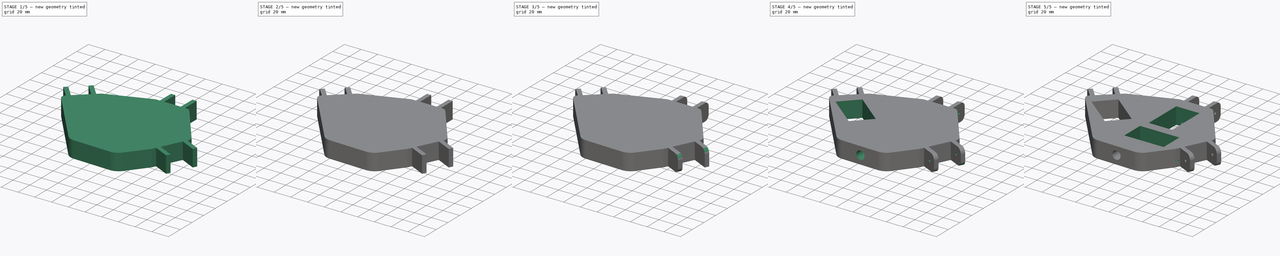
[diagram: build sequence overview — one tinted view per stage of 5, left to right]
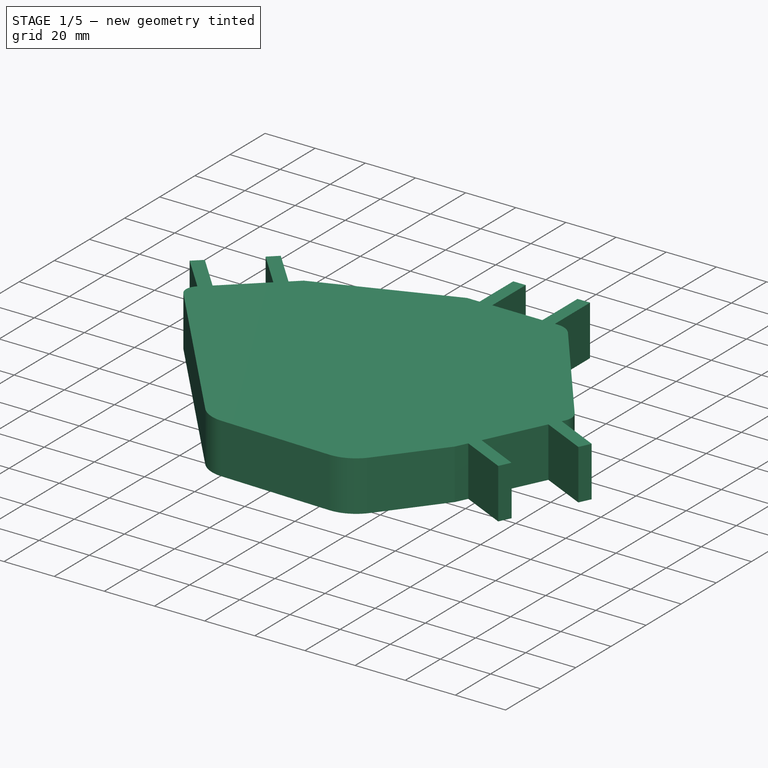
[diagram: stage 1 of 5 — iso view after this stage's code; geometry added in this stage tinted green]
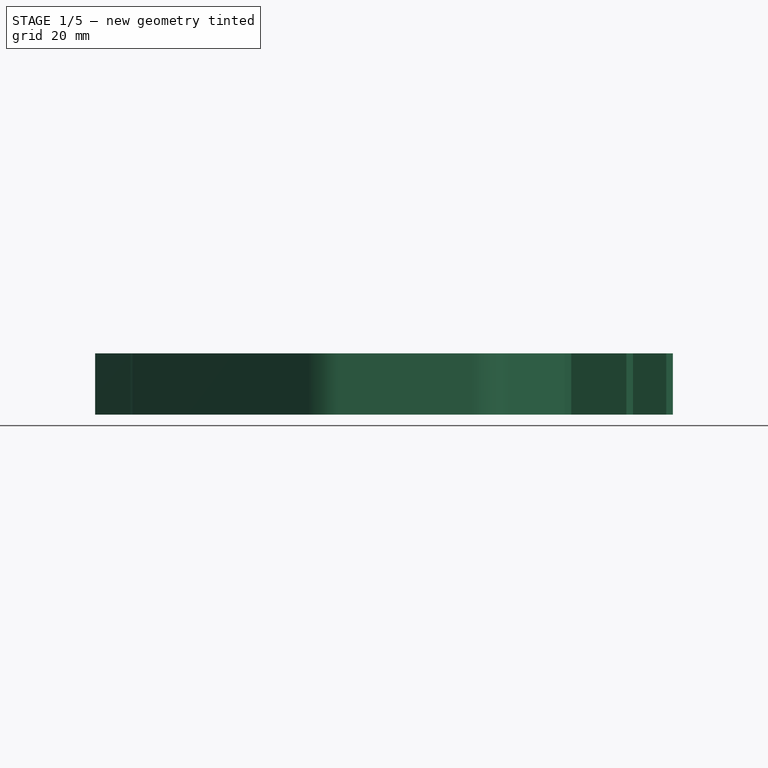
[diagram: stage 1 of 5 — front view after this stage's code; geometry added in this stage tinted green]
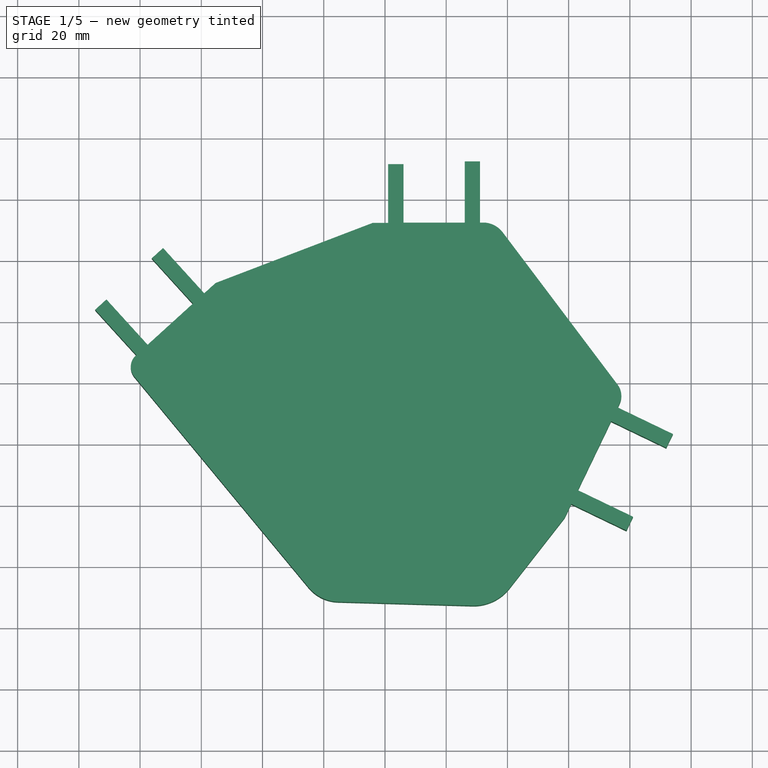
[diagram: stage 1 of 5 — top view after this stage's code; geometry added in this stage tinted green]
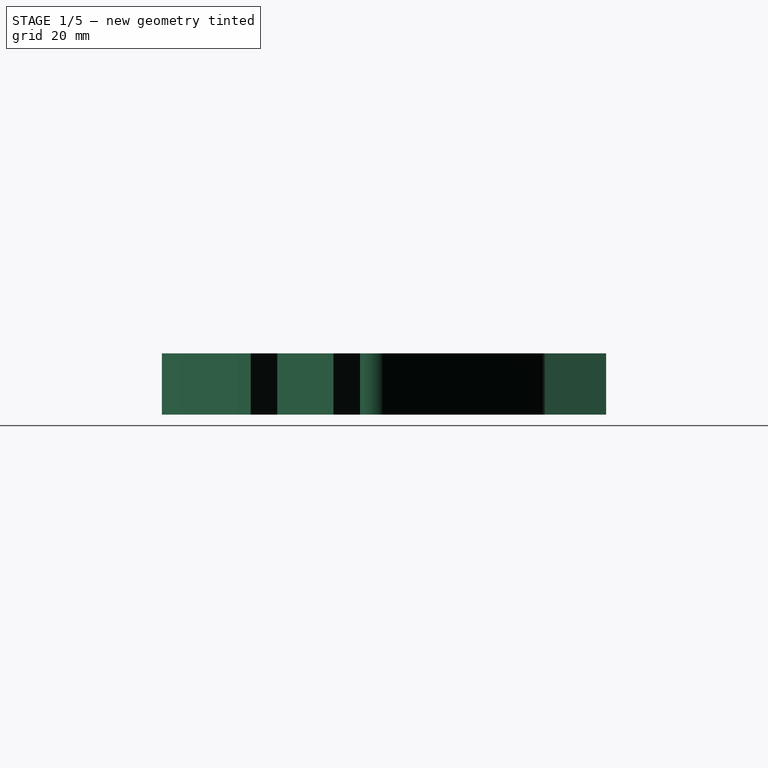
[diagram: stage 1 of 5 — right view after this stage's code; geometry added in this stage tinted green]
FCSTD DOCUMENT  (FreeCAD 0.20R29601 (Git))
Label: palm_updated
License: All rights reserved
LicenseURL: http://en.wikipedia.org/wiki/All_rights_reserved
objects: PartDesign::Fillet×19, PartDesign::Pocket×11, Sketcher::SketchObject×9, PartDesign::Pad×1, PartDesign::Body×1
note: 72 computed .brp shape members not serialized (recipe doc carries the construction recipe); baked Part::Feature solids carry a one-line shape summary decoded from their .brp

FEATURE [Sketcher::SketchObject] Sketch
  FullyConstrained = false
  MapMode = 5
  Support = -> [XY_Plane]
  sketch-geometry (32):
    g0: LineSegment StartX=-64.9413 StartY=5.66135 StartZ=0 EndX=-61.2408 EndY=9.02385 EndZ=0
    g1: LineSegment StartX=-61.2408 StartY=9.02385 StartZ=0 EndX=-74.6908 EndY=23.8258 EndZ=0
    g2: LineSegment StartX=-74.6908 StartY=23.8258 StartZ=0 EndX=-70.9904 EndY=27.1883 EndZ=0
    g3: LineSegment StartX=-70.9904 StartY=27.1883 StartZ=0 EndX=-57.5403 EndY=12.3864 EndZ=0
    g4: LineSegment StartX=-57.5403 StartY=12.3864 StartZ=0 EndX=-42.7384 EndY=25.8364 EndZ=0
    g5: LineSegment StartX=-42.7384 StartY=25.8364 StartZ=0 EndX=-56.1884 EndY=40.6383 EndZ=0
    g6: LineSegment StartX=-56.1884 StartY=40.6383 StartZ=0 EndX=-52.4879 EndY=44.0008 EndZ=0
    g7: LineSegment StartX=-52.4879 StartY=44.0008 StartZ=0 EndX=-39.0379 EndY=29.1989 EndZ=0
    g8: LineSegment StartX=-39.0379 StartY=29.1989 StartZ=0 EndX=-35.3374 EndY=32.5614 EndZ=0
    g9: LineSegment StartX=-35.3374 StartY=32.5614 StartZ=0 EndX=16.0302 EndY=52.2176 EndZ=0
    g10: LineSegment StartX=16.0302 StartY=52.2176 StartZ=0 EndX=21.0379 EndY=52.2176 EndZ=0
    g11: LineSegment StartX=21.0379 StartY=52.2176 StartZ=0 EndX=21.0379 EndY=71.3857 EndZ=0
    g12: LineSegment StartX=21.0379 StartY=71.3857 StartZ=0 EndX=26.0379 EndY=71.3857 EndZ=0
    g13: LineSegment StartX=26.0379 StartY=52.3042 StartZ=0 EndX=46.0379 EndY=52.3042 EndZ=0
    g14: LineSegment StartX=46.0379 StartY=52.3042 StartZ=0 EndX=46.0379 EndY=72.3042 EndZ=0
    g15: LineSegment StartX=46.0379 StartY=72.3042 StartZ=0 EndX=51.0379 EndY=72.3042 EndZ=0
    g16: LineSegment StartX=51.0379 StartY=72.3042 StartZ=0 EndX=51.0379 EndY=52.3042 EndZ=0
    g17: LineSegment StartX=51.0379 StartY=52.3042 StartZ=0 EndX=56.0537 EndY=52.3042 EndZ=0
    g18: LineSegment StartX=56.0537 StartY=52.3042 StartZ=0 EndX=98.1987 EndY=-3.58683 EndZ=0
    g19: LineSegment StartX=98.1987 StartY=-3.58683 StartZ=0 EndX=96.0294 EndY=-8.09172 EndZ=0
    g20: LineSegment StartX=96.0294 StartY=-8.09172 StartZ=0 EndX=114.049 EndY=-16.7691 EndZ=0
    g21: LineSegment StartX=114.049 StartY=-16.7691 StartZ=0 EndX=111.88 EndY=-21.2739 EndZ=0
    g22: LineSegment StartX=111.88 StartY=-21.2739 StartZ=0 EndX=93.86 EndY=-12.5966 EndZ=0
    g23: LineSegment StartX=93.86 StartY=-12.5966 StartZ=0 EndX=83.0133 EndY=-35.121 EndZ=0
    g24: LineSegment StartX=83.0133 StartY=-35.121 StartZ=0 EndX=101.033 EndY=-43.7984 EndZ=0
    g25: LineSegment StartX=101.033 StartY=-43.7984 StartZ=0 EndX=98.8635 EndY=-48.3032 EndZ=0
    g26: LineSegment StartX=98.8635 StartY=-48.3032 StartZ=0 EndX=80.844 EndY=-39.6259 EndZ=0
    g27: LineSegment StartX=80.844 StartY=-39.6259 StartZ=0 EndX=78.6747 EndY=-44.1308 EndZ=0
    g28: LineSegment StartX=78.6747 StartY=-44.1308 StartZ=0 EndX=56.0759 EndY=-73.048 EndZ=0
    g29: LineSegment StartX=56.0759 StartY=-73.048 StartZ=0 EndX=-1.22641 EndY=-71.4127 EndZ=0
    g30: LineSegment StartX=-64.9413 StartY=5.66135 StartZ=0 EndX=-1.22641 EndY=-71.4127 EndZ=0
    g31: LineSegment StartX=26.0379 StartY=71.3857 StartZ=0 EndX=26.0379 EndY=52.3042 EndZ=0
  constraints (63):
    c: Coincident(g0,g1)
    c: Coincident(g1,g2)
    c: Coincident(g2,g3)
    c: Coincident(g3,g4)
    c: Coincident(g4,g5)
    c: Coincident(g5,g6)
    c: Coincident(g6,g7)
    c: Coincident(g7,g8)
    c: Coincident(g8,g9)
    c: Coincident(g9,g10)
    c: Coincident(g10,g11)
    c: Vertical(g11)
    c: Coincident(g11,g12)
    c: Horizontal(g13)
    c: Coincident(g13,g14)
    c: Vertical(g14)
    c: Coincident(g14,g15)
    c: Horizontal(g15)
    c: Coincident(g15,g16)
    c: Vertical(g16)
    c: Coincident(g16,g17)
    c: Coincident(g17,g18)
    c: Coincident(g18,g19)
    c: Coincident(g19,g20)
    c: Coincident(g20,g21)
    c: Coincident(g21,g22)
    c: Coincident(g22,g23)
    c: Coincident(g23,g24)
    c: Coincident(g24,g25)
    c: Coincident(g25,g26)
    c: Coincident(g26,g27)
    c: Coincident(g27,g28)
    c: Coincident(g28,g29)
    c: Coincident(g30,g0)
    c: Coincident(g30,g29)
    c: Distance(g18) = 70
    c: Distance(g9) = 55
    c: Distance(g30) = 100
    c: Parallel(g0,g4)
    c: Parallel(g2,g4)
    c: Parallel(g6,g4)
    c: Parallel(g8,g6)
    c: Parallel(g1,g3)
    c: Parallel(g5,g7)
    c: Angle(g4,g3) = 1.5708
    c: Angle(g8,g7) = 1.5708
    c: Angle(g11,g10) = 1.5708
    c: Angle(g11,g12) = 1.5708
    c: Angle(g17,g16) = 1.5708
    c: Angle(g19,g23) = 3.14159
    c: Angle(g20,g19) = 1.5708
    c: Angle(g23,g22) = 1.5708
    c: Angle(g21,g23) = 0
    c: Angle(g27,g23) = 0
    c: Angle(g24,g25) = 1.5708
    c: Parallel(g24,g26)
    c: Parallel(g23,g25)
    c: Coincident(g31,g12)
    c: Coincident(g31,g13)
    c: Vertical(g31)
    c: Distance(g15) = 5
    c: Distance(g12) = 5
    c: Distance(g13) = 20
FEATURE [PartDesign::Pad] Pad
  Direction = (0,0,1)
  Length = 20
  Length2 = 10
  Profile = -> Sketch
  ReferenceAxis = -> Sketch [N_Axis]
  Type = 0
FEATURE [PartDesign::Fillet] Fillet
  Base = -> Pad [Edge89]
  BaseFeature = -> Pad
  Radius = 15
  SupportTransform = false
  UseAllEdges = false
FEATURE [PartDesign::Fillet] Fillet001
  Base = -> Fillet [Edge71]
  BaseFeature = -> Fillet
  Radius = 13
  SupportTransform = false
  UseAllEdges = false
FEATURE [PartDesign::Fillet] Fillet002
  Base = -> Fillet001 [Edge80]
  BaseFeature = -> Fillet001
  Radius = 6
  SupportTransform = false
  UseAllEdges = false
FEATURE [PartDesign::Fillet] Fillet003
  Base = -> Fillet002 [Edge43]
  BaseFeature = -> Fillet002
  Radius = 8
  SupportTransform = false
  UseAllEdges = false
FEATURE [PartDesign::Fillet] Fillet004
  Base = -> Fillet003 [Edge98]
  BaseFeature = -> Fillet003
  Radius = 5
  SupportTransform = false
  UseAllEdges = false
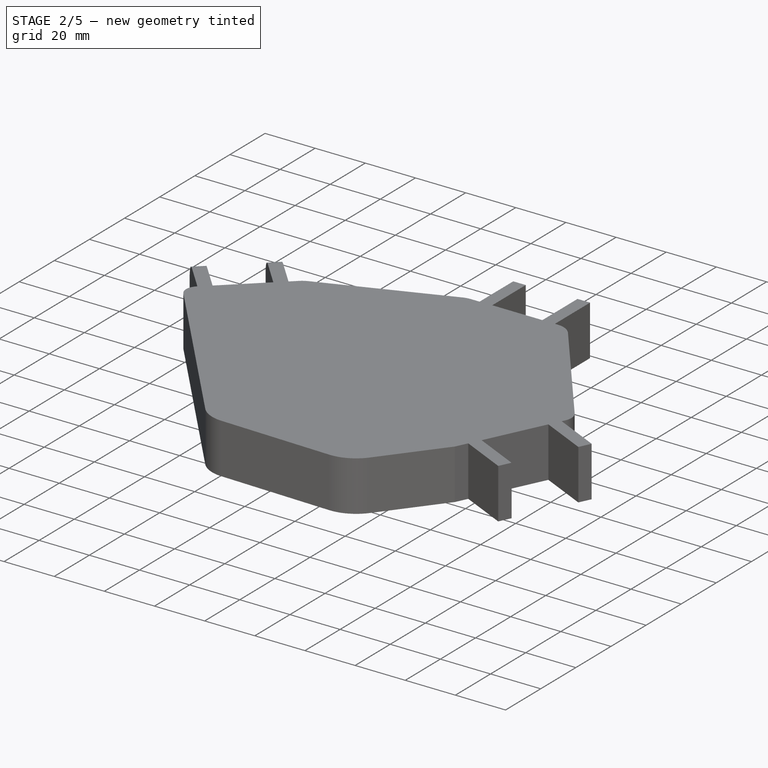
[diagram: stage 2 of 5 — iso view after this stage's code; geometry added in this stage tinted green]
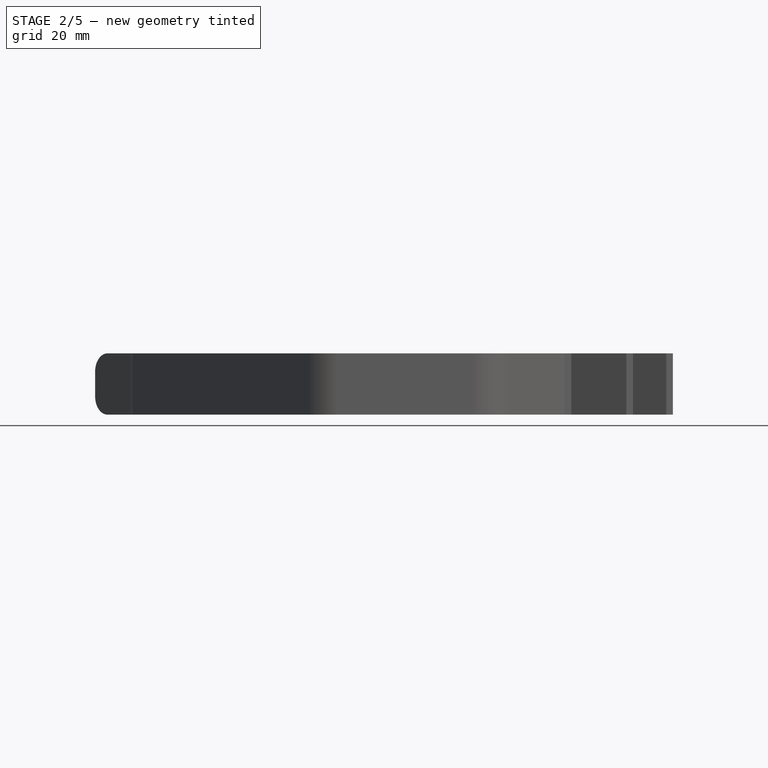
[diagram: stage 2 of 5 — front view after this stage's code; geometry added in this stage tinted green]
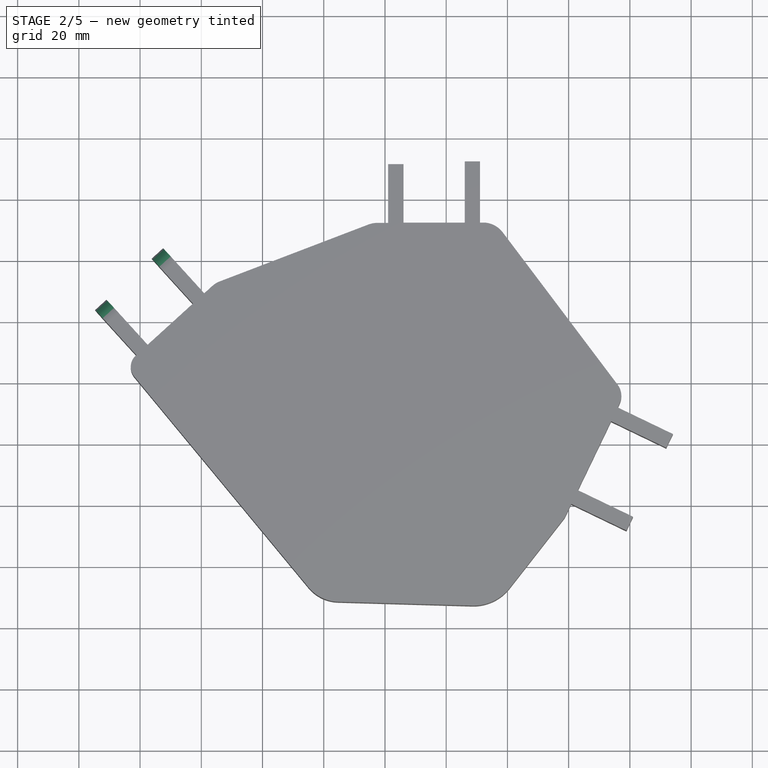
[diagram: stage 2 of 5 — top view after this stage's code; geometry added in this stage tinted green]
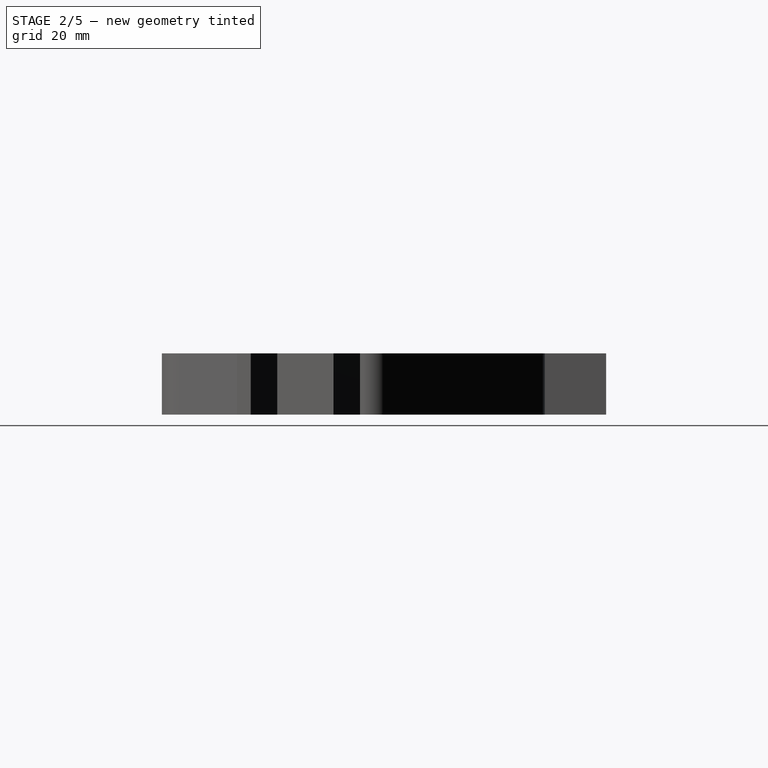
[diagram: stage 2 of 5 — right view after this stage's code; geometry added in this stage tinted green]
FEATURE [PartDesign::Fillet] Fillet005
  Base = -> Fillet004 [Edge77]
  BaseFeature = -> Fillet004
  Radius = 8
  SupportTransform = false
  UseAllEdges = false
FEATURE [PartDesign::Fillet] Fillet006
  Base = -> Fillet005 [Edge46]
  BaseFeature = -> Fillet005
  Radius = 9
  SupportTransform = false
  UseAllEdges = false
FEATURE [PartDesign::Fillet] Fillet007
  Base = -> Fillet006 [Edge74]
  BaseFeature = -> Fillet006
  Radius = 6
  SupportTransform = false
  UseAllEdges = false
FEATURE [PartDesign::Fillet] Fillet008
  Base = -> Fillet007 [Edge52]
  BaseFeature = -> Fillet007
  Radius = 6
  SupportTransform = false
  UseAllEdges = false
FEATURE [PartDesign::Fillet] Fillet009
  Base = -> Fillet008 [Edge123]
  BaseFeature = -> Fillet008
  Radius = 6
  SupportTransform = false
  UseAllEdges = false
FEATURE [PartDesign::Fillet] Fillet010
  Base = -> Fillet009 [Edge18]
  BaseFeature = -> Fillet009
  Radius = 6
  SupportTransform = false
  UseAllEdges = false
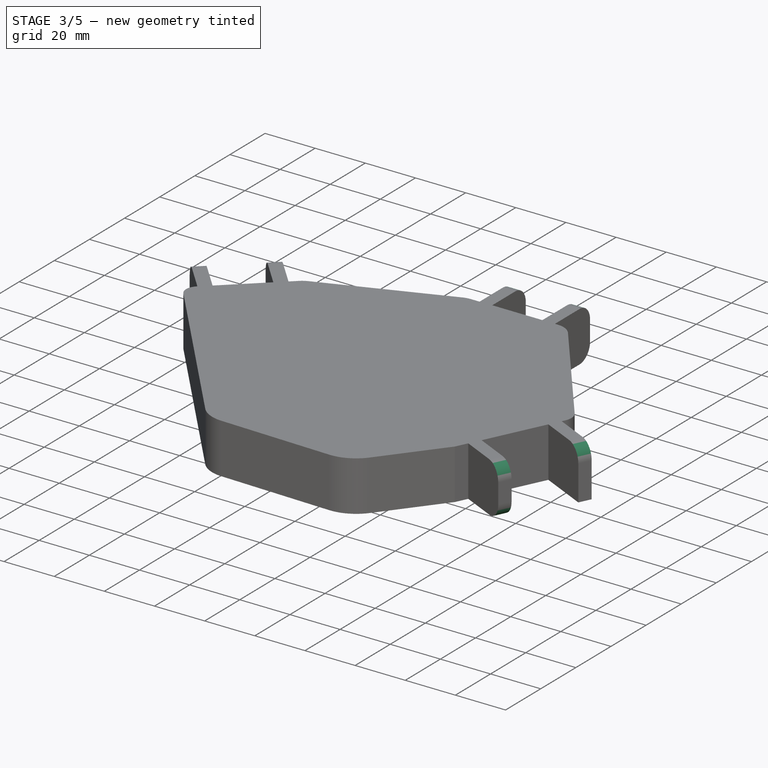
[diagram: stage 3 of 5 — iso view after this stage's code; geometry added in this stage tinted green]
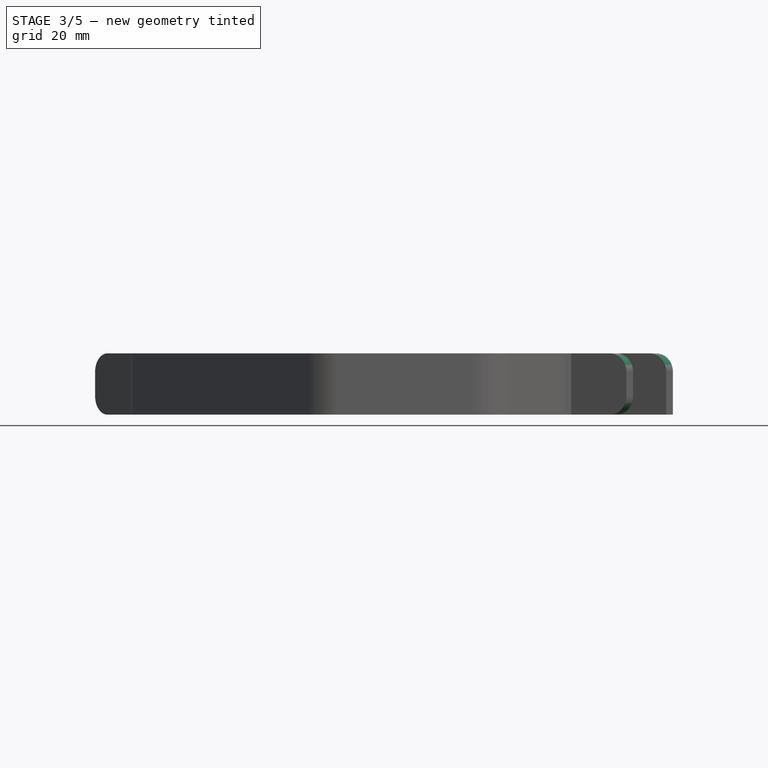
[diagram: stage 3 of 5 — front view after this stage's code; geometry added in this stage tinted green]
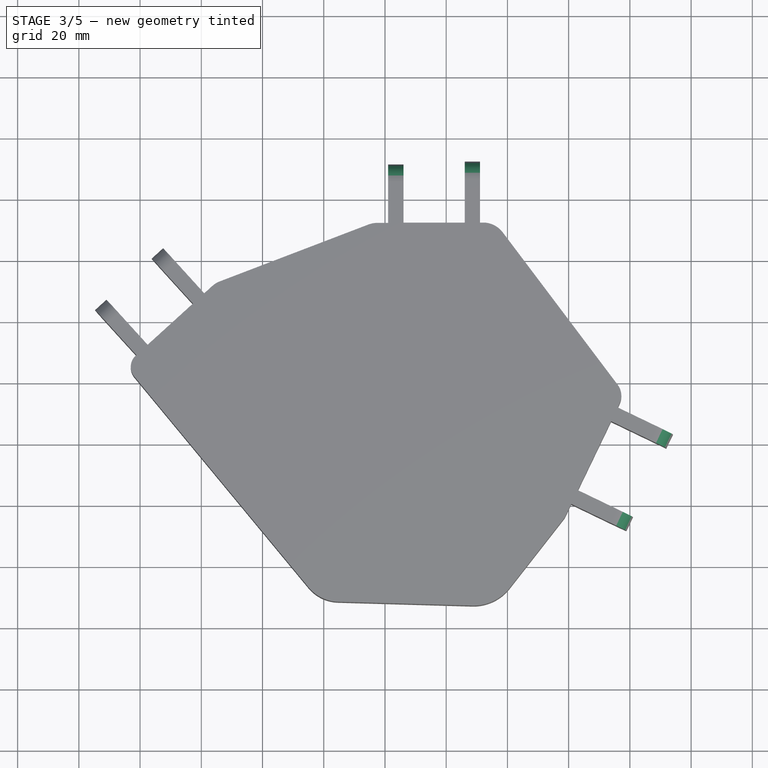
[diagram: stage 3 of 5 — top view after this stage's code; geometry added in this stage tinted green]
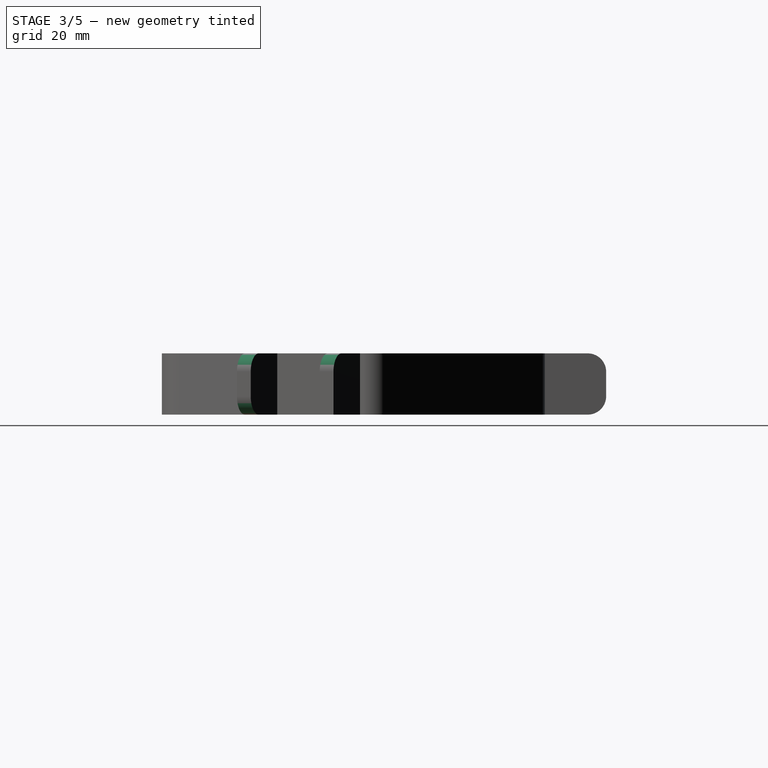
[diagram: stage 3 of 5 — right view after this stage's code; geometry added in this stage tinted green]
FEATURE [PartDesign::Fillet] Fillet011
  Base = -> Fillet010 [Edge84]
  BaseFeature = -> Fillet010
  Radius = 6
  SupportTransform = false
  UseAllEdges = false
FEATURE [PartDesign::Fillet] Fillet012
  Base = -> Fillet011 [Edge7]
  BaseFeature = -> Fillet011
  Radius = 6
  SupportTransform = false
  UseAllEdges = false
FEATURE [PartDesign::Fillet] Fillet013
  Base = -> Fillet012 [Edge21]
  BaseFeature = -> Fillet012
  Radius = 6
  SupportTransform = false
  UseAllEdges = false
FEATURE [PartDesign::Fillet] Fillet014
  Base = -> Fillet013 [Edge132]
  BaseFeature = -> Fillet013
  Radius = 6
  SupportTransform = false
  UseAllEdges = false
FEATURE [PartDesign::Fillet] Fillet015
  Base = -> Fillet014 [Edge29]
  BaseFeature = -> Fillet014
  Radius = 6
  SupportTransform = false
  UseAllEdges = false
FEATURE [PartDesign::Fillet] Fillet016
  Base = -> Fillet015 [Edge10]
  BaseFeature = -> Fillet015
  Radius = 6
  SupportTransform = false
  UseAllEdges = false
FEATURE [PartDesign::Fillet] Fillet017
  Base = -> Fillet016 [Edge138]
  BaseFeature = -> Fillet016
  Radius = 6
  SupportTransform = false
  UseAllEdges = false
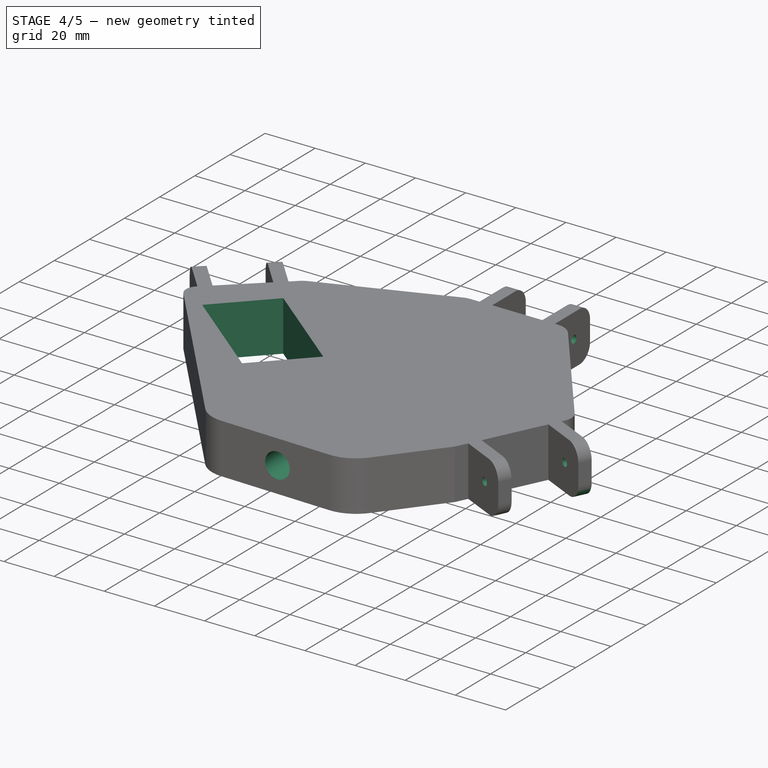
[diagram: stage 4 of 5 — iso view after this stage's code; geometry added in this stage tinted green]
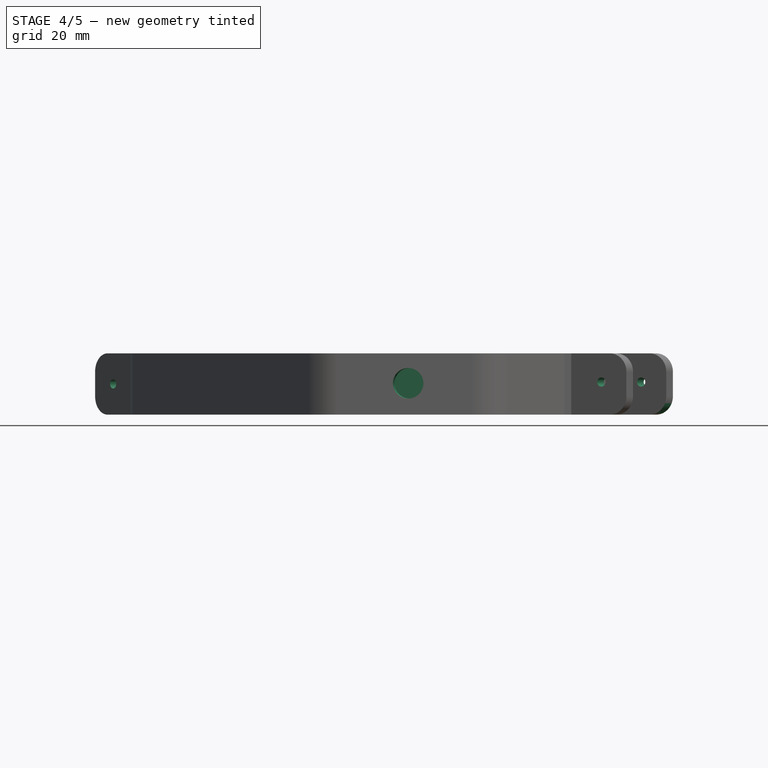
[diagram: stage 4 of 5 — front view after this stage's code; geometry added in this stage tinted green]
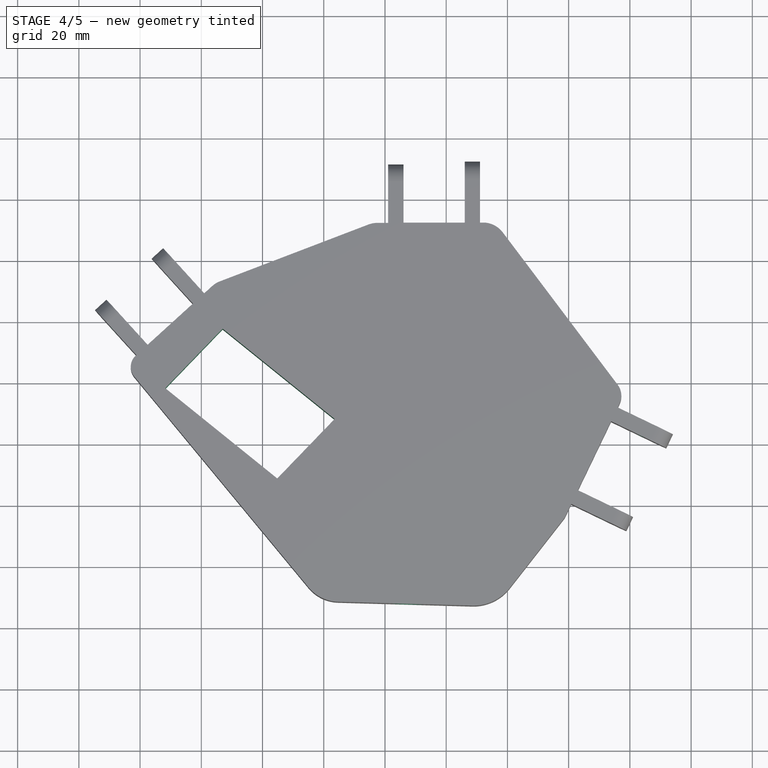
[diagram: stage 4 of 5 — top view after this stage's code; geometry added in this stage tinted green]
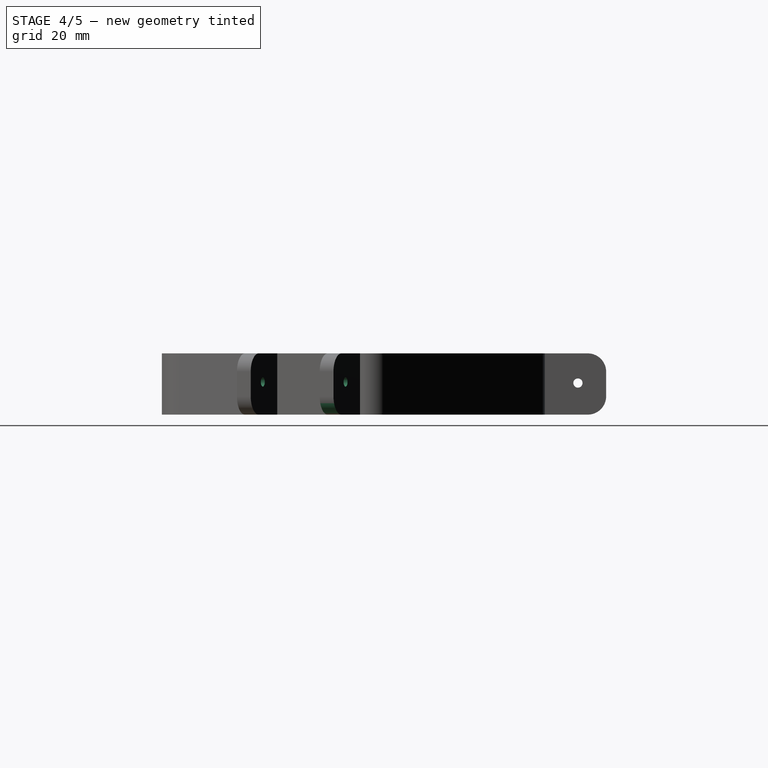
[diagram: stage 4 of 5 — right view after this stage's code; geometry added in this stage tinted green]
FEATURE [PartDesign::Fillet] Fillet018
  Base = -> Fillet017 [Edge18]
  BaseFeature = -> Fillet017
  Radius = 6
  SupportTransform = false
  UseAllEdges = false
FEATURE [Sketcher::SketchObject] Sketch001
  FullyConstrained = false
  MapMode = 5
  Placement = pos=(51.0379,0,0) rot=(0.57735,0.57735,0.57735;2.0944rad)
  Support = -> [Fillet018]
  sketch-geometry (1):
    g0: Circle CenterX=63.0879 CenterY=10.3189 CenterZ=0 NormalX=0 NormalY=0 NormalZ=1 AngleXU=0 Radius=1.5
FEATURE [PartDesign::Pocket] Pocket
  BaseFeature = -> Fillet018
  Direction = (-1,0,0)
  Length = 5
  Length2 = 5
  Profile = -> Sketch001
  ReferenceAxis = -> Sketch001 [N_Axis]
  Type = 1
FEATURE [Sketcher::SketchObject] Sketch002
  FullyConstrained = false
  MapMode = 5
  Placement = pos=(-0.271812,-0.564451,0) rot=(0.951656,-0.2172,-0.2172;1.62033rad)
  Support = -> [Pocket]
  sketch-geometry (1):
    g0: Circle CenterX=100.935 CenterY=10.6491 CenterZ=0 NormalX=0 NormalY=0 NormalZ=1 AngleXU=0 Radius=1.5
FEATURE [PartDesign::Pocket] Pocket001
  BaseFeature = -> Pocket
  Direction = (0.433867,0.900977,3e-16)
  Length = 5
  Length2 = 5
  Profile = -> Sketch002
  ReferenceAxis = -> Sketch002 [N_Axis]
  Type = 1
FEATURE [Sketcher::SketchObject] Sketch003
  FullyConstrained = false
  MapMode = 5
  Placement = pos=(-29.0529,-26.3994,0) rot=(0.847693,-0.375111,-0.375111;1.73529rad)
  Support = -> [Pocket001]
  sketch-geometry (1):
    g0: Circle CenterX=-59.104 CenterY=10.0185 CenterZ=0 NormalX=0 NormalY=0 NormalZ=1 AngleXU=0 Radius=1.5
FEATURE [PartDesign::Pocket] Pocket002
  BaseFeature = -> Pocket001
  Direction = (0.740096,0.672501,1e-16)
  Length = 5
  Length2 = 5
  Profile = -> Sketch003
  ReferenceAxis = -> Sketch003 [N_Axis]
  Type = 1
FEATURE [Sketcher::SketchObject] Sketch004
  FullyConstrained = false
  MapMode = 5
  Placement = pos=(-2.03729,-71.3896,0) rot=(0.999797,-0.014263,-0.014263;1.571rad)
  Support = -> [Pocket002]
  sketch-geometry (1):
    g0: Circle CenterX=29.6142 CenterY=10.2366 CenterZ=0 NormalX=0 NormalY=0 NormalZ=1 AngleXU=0 Radius=5
FEATURE [PartDesign::Pocket] Pocket003
  BaseFeature = -> Pocket002
  Direction = (0.0285261,0.999593,0)
  Length = 20
  Length2 = 5
  Profile = -> Sketch004
  ReferenceAxis = -> Sketch004 [N_Axis]
  Type = 0
FEATURE [Sketcher::SketchObject] Sketch005
  FullyConstrained = false
  MapMode = 5
  Placement = pos=(0,0,20) rot=(0,0,1;0rad)
  Support = -> [Pocket003]
  sketch-geometry (4):
    g0: LineSegment StartX=-51.7735 StartY=-1.795 StartZ=0 EndX=-33.0335 EndY=17.6424 EndZ=0
    g1: LineSegment StartX=-51.7735 StartY=-1.795 StartZ=0 EndX=-15.1863 EndY=-31.2971 EndZ=0
    g2: LineSegment StartX=-33.0335 StartY=17.6424 StartZ=0 EndX=3.55375 EndY=-11.8597 EndZ=0
    g3: LineSegment StartX=-15.1863 StartY=-31.2971 StartZ=0 EndX=3.55375 EndY=-11.8597 EndZ=0
  constraints (7):
    c: Coincident(g2,g0)
    c: Coincident(g3,g1)
    c: Coincident(g3,g2)
    c: Distance(g3) = 27
    c: Distance(g0) = 27
    c: Distance(g1) = 47
    c: Distance(g2) = 47
FEATURE [PartDesign::Pocket] Pocket004
  BaseFeature = -> Pocket003
  Direction = (0,0,-1)
  Length = 5
  Length2 = 5
  Profile = -> Sketch005
  ReferenceAxis = -> Sketch005 [N_Axis]
  Type = 1
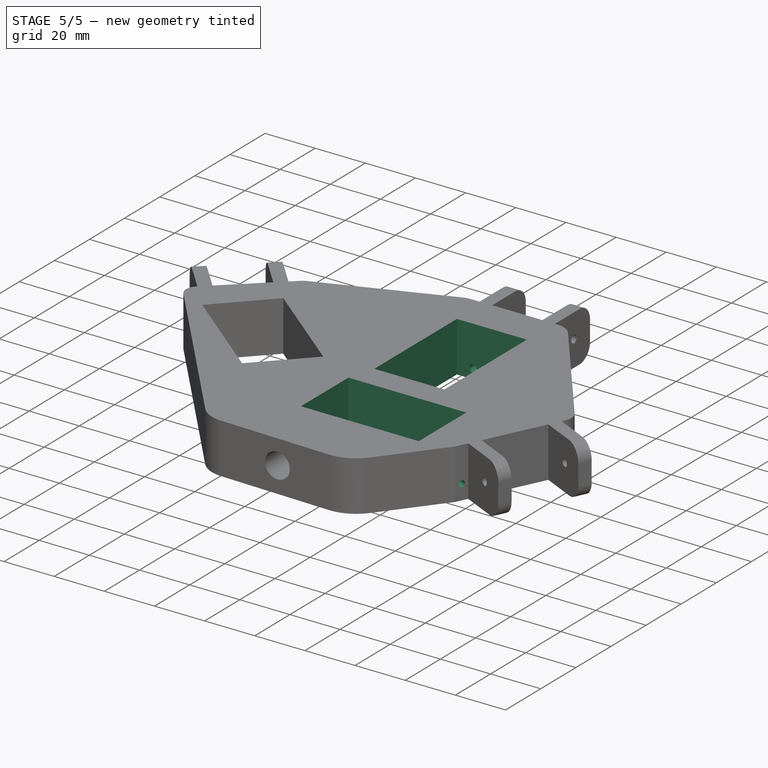
[diagram: stage 5 of 5 — iso view after this stage's code; geometry added in this stage tinted green]
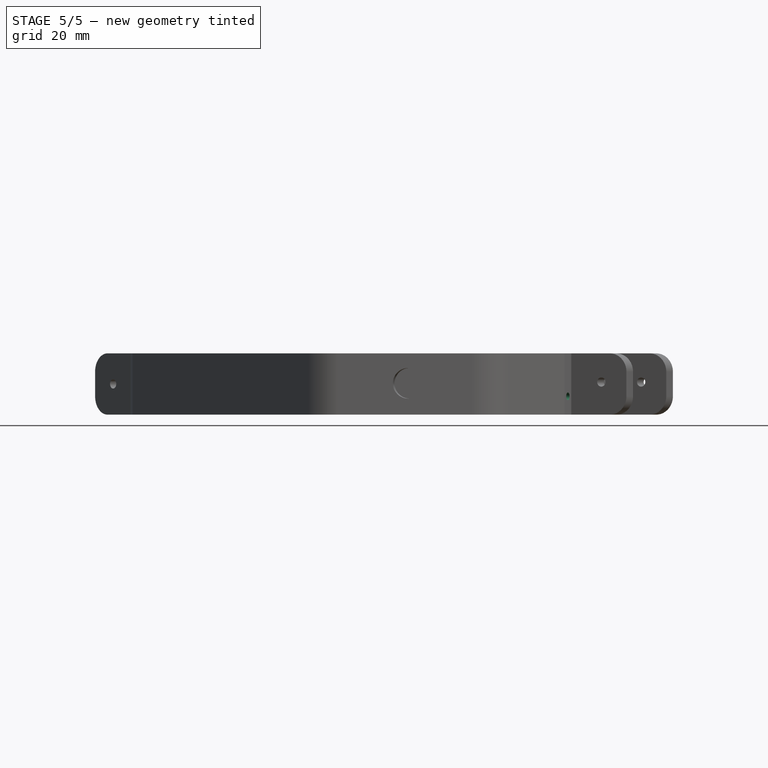
[diagram: stage 5 of 5 — front view after this stage's code; geometry added in this stage tinted green]
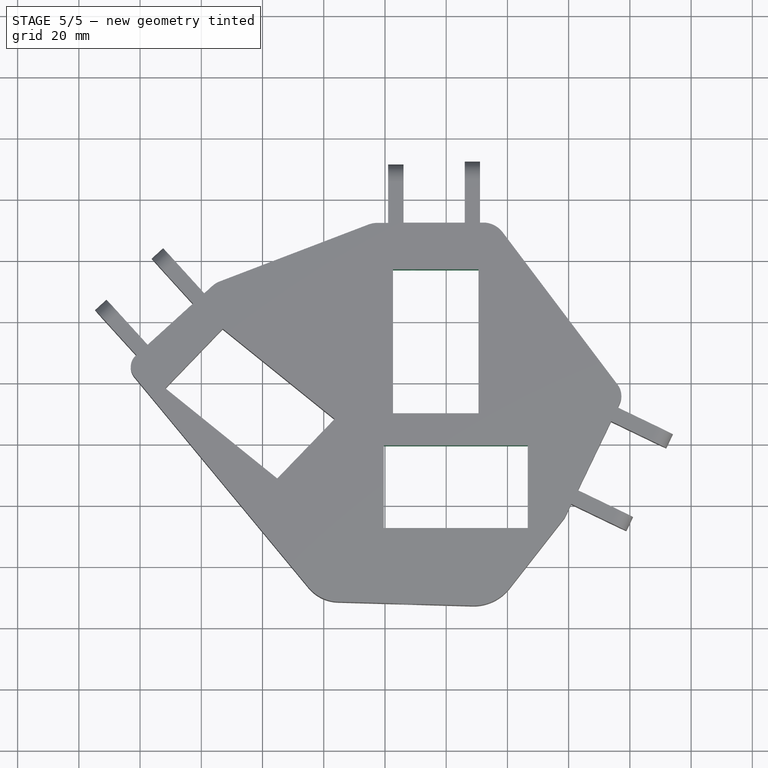
[diagram: stage 5 of 5 — top view after this stage's code; geometry added in this stage tinted green]
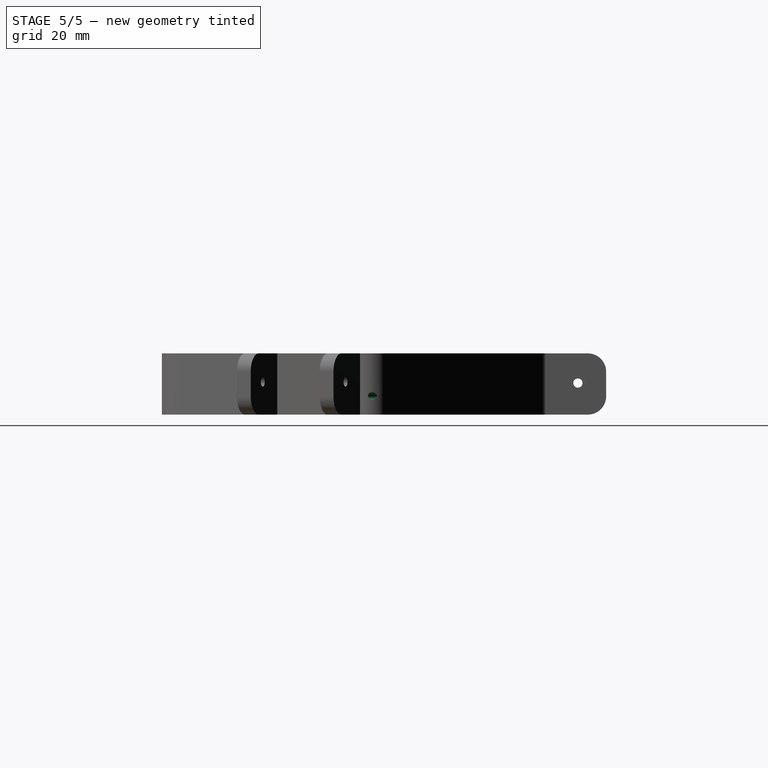
[diagram: stage 5 of 5 — right view after this stage's code; geometry added in this stage tinted green]
FEATURE [Sketcher::SketchObject] Sketch006
  FullyConstrained = false
  MapMode = 5
  Placement = pos=(0,0,20) rot=(0,0,1;0rad)
  Support = -> [Pocket004]
  sketch-geometry (4):
    g0: LineSegment StartX=50.5318 StartY=37.0107 StartZ=0 EndX=22.6368 EndY=37.0107 EndZ=0
    g1: LineSegment StartX=50.5318 StartY=37.0107 StartZ=0 EndX=50.5318 EndY=-9.98935 EndZ=0
    g2: LineSegment StartX=22.6368 StartY=-9.98935 StartZ=0 EndX=50.5318 EndY=-9.98935 EndZ=0
    g3: LineSegment StartX=22.6368 StartY=37.0107 StartZ=0 EndX=22.6368 EndY=-9.98935 EndZ=0
  constraints (6):
    c: Coincident(g2,g1)
    c: Distance(g2) = 27.895
    c: Distance(g0) = 27.895
    c: Coincident(g3,g0)
    c: Coincident(g3,g2)
    c: Vertical(g3)
FEATURE [PartDesign::Pocket] Pocket005
  BaseFeature = -> Pocket004
  Direction = (0,0,-1)
  Length = 5
  Length2 = 5
  Profile = -> Sketch006
  ReferenceAxis = -> Sketch006 [N_Axis]
  Type = 1
FEATURE [Sketcher::SketchObject] Sketch007
  FullyConstrained = false
  MapMode = 5
  Placement = pos=(0,0,20) rot=(0,0,1;0rad)
  Support = -> [Pocket005]
  sketch-geometry (4):
    g0: LineSegment StartX=19.6221 StartY=-20.4845 StartZ=0 EndX=66.6221 EndY=-20.4845 EndZ=0
    g1: LineSegment StartX=19.6221 StartY=-20.4845 StartZ=0 EndX=19.6221 EndY=-47.4845 EndZ=0
    g2: LineSegment StartX=66.6221 StartY=-20.4845 StartZ=0 EndX=66.6221 EndY=-47.4845 EndZ=0
    g3: LineSegment StartX=19.6221 StartY=-47.4845 StartZ=0 EndX=66.6221 EndY=-47.4845 EndZ=0
  constraints (8):
    c: Horizontal(g0)
    c: Coincident(g1,g0)
    c: Vertical(g1)
    c: Coincident(g2,g0)
    c: Vertical(g2)
    c: Coincident(g3,g1)
    c: Coincident(g3,g2)
    c: Horizontal(g3)
FEATURE [PartDesign::Pocket] Pocket006
  BaseFeature = -> Pocket005
  Direction = (0,0,-1)
  Length = 5
  Length2 = 5
  Profile = -> Sketch007
  ReferenceAxis = -> Sketch007 [N_Axis]
  Type = 1
FEATURE [Sketcher::SketchObject] Sketch009
  FullyConstrained = false
  MapMode = 5
  Placement = pos=(0,52.3042,0) rot=(0,0.707107,0.707107;3.14159rad)
  Support = -> [Pocket006]
  sketch-geometry (2):
    g0: Circle CenterX=-43.1699 CenterY=3.95202 CenterZ=0 NormalX=0 NormalY=0 NormalZ=1 AngleXU=0 Radius=1.5
    g1: Circle CenterX=-29.1542 CenterY=3.74 CenterZ=0 NormalX=0 NormalY=0 NormalZ=1 AngleXU=0 Radius=1.5
FEATURE [PartDesign::Pocket] Pocket007
  BaseFeature = -> Pocket006
  Direction = (0,-1,2e-16)
  Length = 10
  Length2 = 5
  Profile = -> Sketch009
  ReferenceAxis = -> Sketch009 [N_Axis]
  Type = 0
FEATURE [PartDesign::Pocket] Pocket008
  BaseFeature = -> Pocket007
  Direction = (0,-1,0)
  Length = 25
  Length2 = 5
  Profile = -> Pocket007 [Edge116]
  Type = 0
FEATURE [PartDesign::Pocket] Pocket009
  BaseFeature = -> Pocket008
  Direction = (0,-1,0)
  Length = 25
  Length2 = 5
  Profile = -> Pocket008 [Edge117]
  Type = 0
FEATURE [PartDesign::Pocket] Pocket010
  BaseFeature = -> Pocket009
  Direction = (-0.900977,0.433867,-1e-16)
  Length = 20
  Length2 = 5
  Type = 0
FEATURE [PartDesign::Body] Body
  Group = -> [Sketch,Pad,Fillet,Fillet001,Fillet002,Fillet003,Fillet004,Fillet005,Fillet006,Fillet007,Fillet008,Fillet009,Fillet010,Fillet011,Fillet012,Fillet013,Fillet014,Fillet015,Fillet016,Fillet017,Fillet018,Sketch001,Pocket,Sketch002,Pocket001,Sketch003,Pocket002,Sketch004,Pocket003,Sketch005,Pocket004,Sketch006,Pocket005,Sketch007,Pocket006,Sketch009,Pocket007,Pocket008,Pocket009,Pocket010]
  Origin = -> Origin
  Tip = -> Pocket010
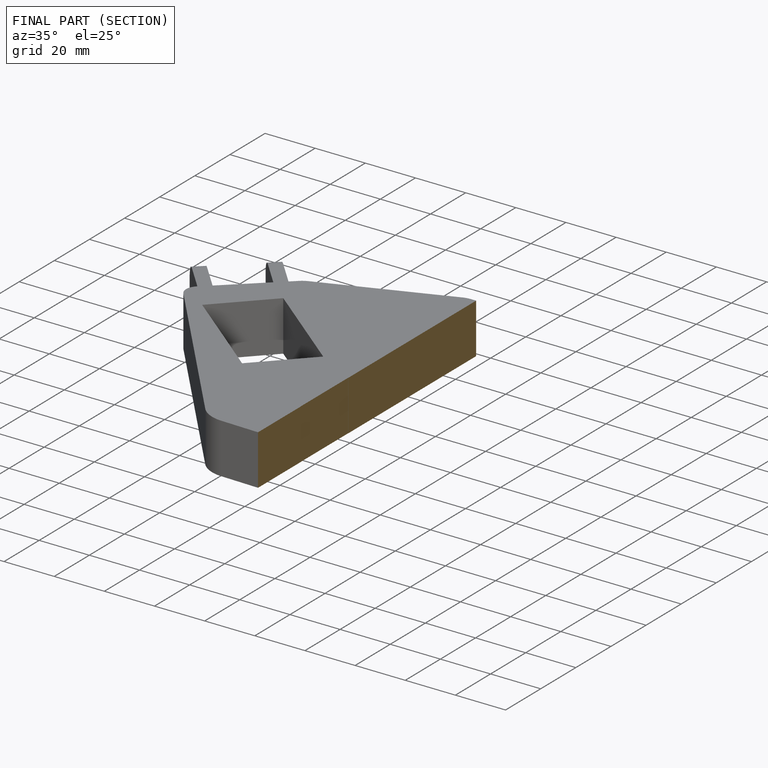
[diagram: finished part — half-section view (interior)]
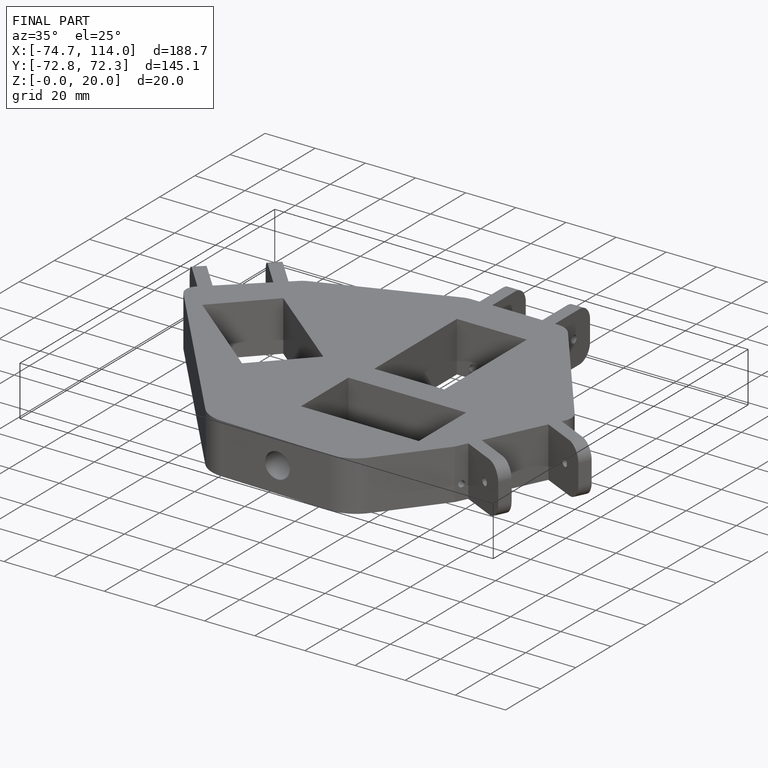
[diagram: finished part — iso view with bounding-box wireframe]
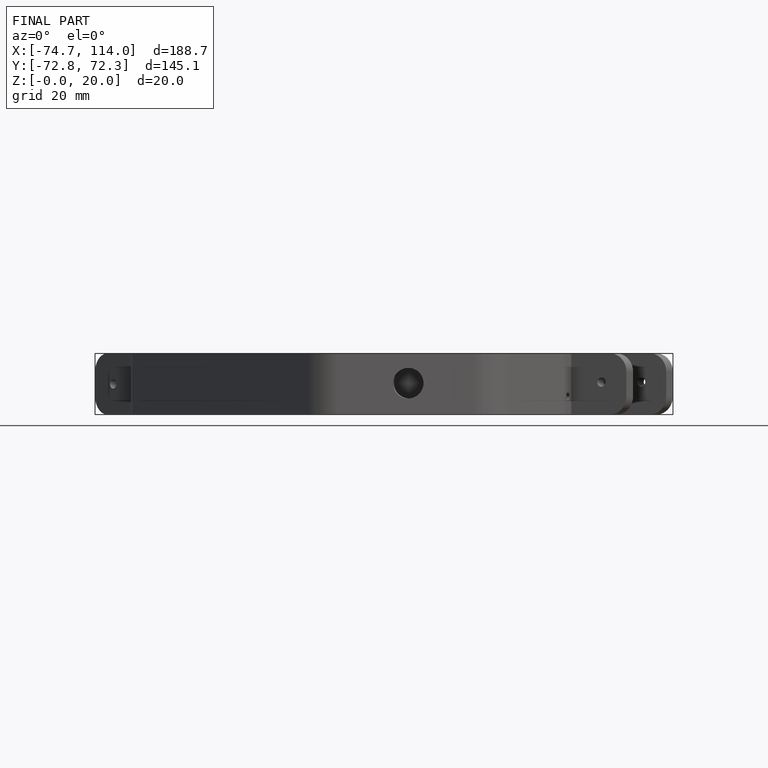
[diagram: finished part — front view with bounding-box wireframe]
